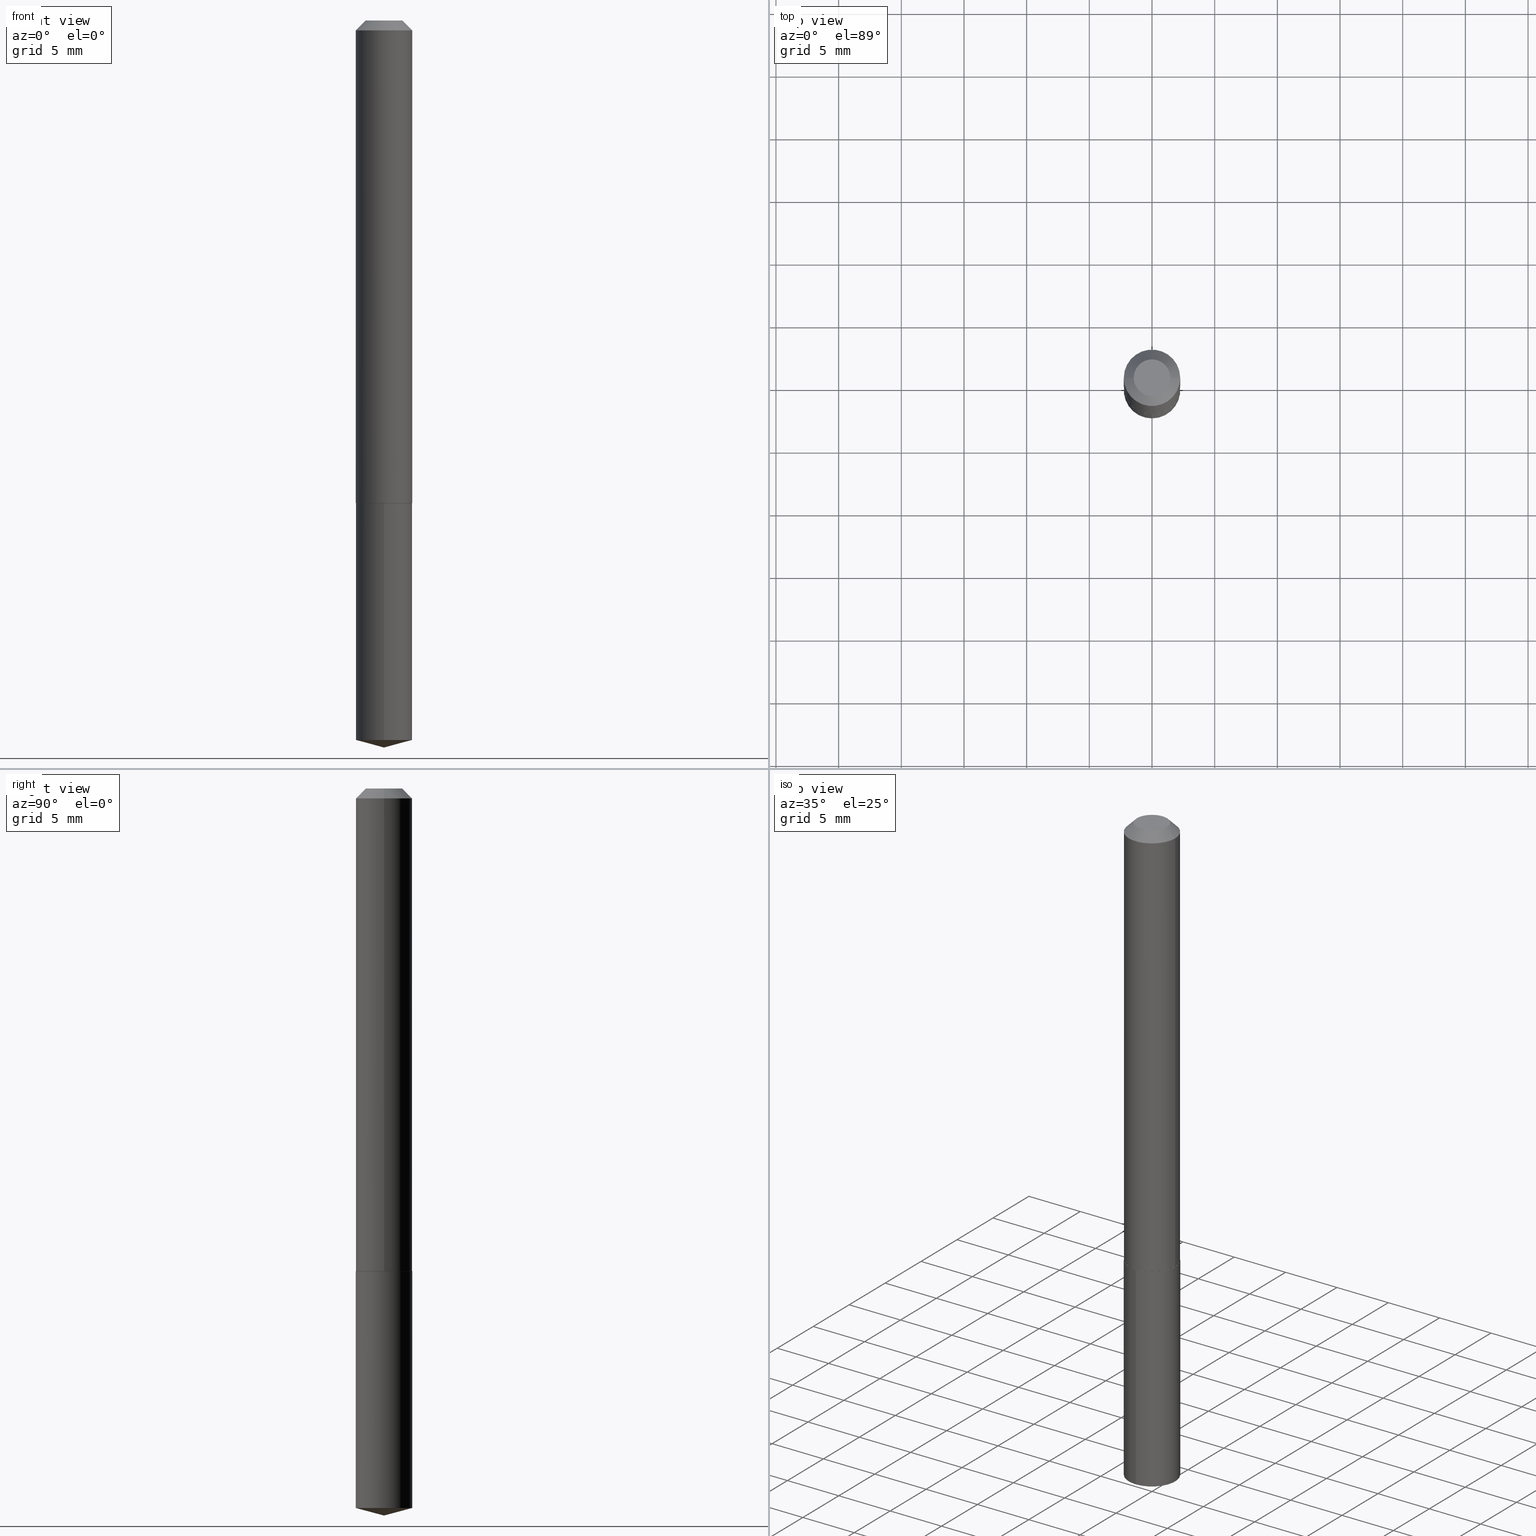
[diagram: canonical four-view strip — front | top / right | iso, engineering-drawing reading convention]
A machine part, canonical four-view strip (front | top / right | iso — engineering-drawing reading convention). The complete STEP part file that produces these views, byte-faithful:
ISO-10303-21;
HEADER;
FILE_DESCRIPTION (( 'STEP AP203' ),
    '1' );
FILE_NAME ('68980.STEP',
    '2024-04-23T14:02:09',
    ( '' ),
    ( '' ),
    'SwSTEP 2.0',
    'SolidWorks 2023',
    '' );
FILE_SCHEMA (( 'CONFIG_CONTROL_DESIGN' ));
ENDSEC;

DATA;
#1 = DIRECTION ( 'NONE',  ( 1.000000000000000000, -6.982962677686267499E-15, 4.876176775795935793E-29 ) ) ;
#2 = EDGE_CURVE ( 'NONE', #19, #376, #138, .T. ) ;
#3 = CARTESIAN_POINT ( 'NONE',  ( 0.08859999999999999820, -7.169489144414067475E-16, -0.03125000000000020817 ) ) ;
#4 = LINE ( 'NONE', #361, #304 ) ;
#5 = MECHANICAL_CONTEXT ( 'NONE', #122, 'mechanical' ) ;
#6 = VECTOR ( 'NONE', #324, 39.37007874015748143 ) ;
#7 =( LENGTH_UNIT ( ) NAMED_UNIT ( * ) SI_UNIT ( $, .METRE. ) );
#8 = APPLICATION_CONTEXT ( 'configuration controlled 3d designs of mechanical parts and assemblies' ) ;
#9 =( NAMED_UNIT ( * ) SI_UNIT ( $, .STERADIAN. ) SOLID_ANGLE_UNIT ( ) );
#10 = PERSON_AND_ORGANIZATION ( #248, #373 ) ;
#11 = CLOSED_SHELL ( 'NONE', ( #99, #189, #73, #169, #341, #325, #384, #48 ) ) ;
#12 = EDGE_CURVE ( 'NONE', #376, #255, #97, .T. ) ;
#13 = ORIENTED_EDGE ( 'NONE', *, *, #219, .F. ) ;
#14 = EDGE_LOOP ( 'NONE', ( #190, #54, #104, #321 ) ) ;
#15 = DATE_AND_TIME ( #236, #45 ) ;
#16 = CARTESIAN_POINT ( 'NONE',  ( 3.706841616415430808E-29, -5.292387413418440845E-15, -1.515800000000000258 ) ) ;
#17 = DIRECTION ( 'NONE',  ( -6.982962677686265133E-15, -1.000000000000000000, 3.083349879982238325E-15 ) ) ;
#18 = VECTOR ( 'NONE', #241, 39.37007874015748143 ) ;
#19 = VERTEX_POINT ( 'NONE', #49 ) ;
#20 = CARTESIAN_POINT ( 'NONE',  ( 5.526122166285560091E-29, -7.889979991911582410E-15, -2.259759701550603239 ) ) ;
#21 = CC_DESIGN_PERSON_AND_ORGANIZATION_ASSIGNMENT ( #157, #366, ( #244 ) ) ;
#22 = ORIENTED_EDGE ( 'NONE', *, *, #269, .T. ) ;
#23 = DIRECTION ( 'NONE',  ( -6.982962677686265133E-15, -1.000000000000000000, 3.083349879982238325E-15 ) ) ;
#24 = CARTESIAN_POINT ( 'NONE',  ( 0.08860000000000017861, -5.909332165992023872E-15, -1.515300000000000313 ) ) ;
#25 = CIRCLE ( 'NONE', #287, 0.08810000000000035858 ) ;
#26 = EDGE_CURVE ( 'NONE', #94, #110, #367, .T. ) ;
#27 = CARTESIAN_POINT ( 'NONE',  ( -5.989671091818665474E-48, 8.551662891793964028E-34, 2.449293598294711584E-19 ) ) ;
#28 = CARTESIAN_POINT ( 'NONE',  ( 3.705618882012338006E-29, -5.290641672749019341E-15, -1.515300000000000313 ) ) ;
#29 = ORIENTED_EDGE ( 'NONE', *, *, #31, .F. ) ;
#30 = DIRECTION ( 'NONE',  ( -2.445468806185136597E-29, 3.491481338843145583E-15, 1.000000000000000000 ) ) ;
#31 = EDGE_CURVE ( 'NONE', #166, #86, #251, .T. ) ;
#32 = VECTOR ( 'NONE', #167, 39.37007874015748854 ) ;
#33 = DIRECTION ( 'NONE',  ( -2.445402010456052703E-29, 3.491576994128970532E-15, 1.000000000000000000 ) ) ;
#34 = CARTESIAN_POINT ( 'NONE',  ( 7.642090019328602662E-31, -1.091087918388490267E-16, -0.03125000000000020817 ) ) ;
#35 = DIRECTION ( 'NONE',  ( -6.982962677686265133E-15, -1.000000000000000000, 3.083349879982238325E-15 ) ) ;
#36 = APPROVAL ( #220, 'UNSPECIFIED' ) ;
#37 = VECTOR ( 'NONE', #364, 39.37007874015748143 ) ;
#38 = ORIENTED_EDGE ( 'NONE', *, *, #245, .F. ) ;
#39 = APPROVAL_PERSON_ORGANIZATION ( #253, #343, #133 ) ;
#40 = PRODUCT_DEFINITION_SHAPE ( 'NONE', 'NONE',  #173 ) ;
#41 = APPROVAL_ROLE ( '' ) ;
#42 =( NAMED_UNIT ( * ) PLANE_ANGLE_UNIT ( ) SI_UNIT ( $, .RADIAN. ) );
#43 = VECTOR ( 'NONE', #109, 39.37007874015748143 ) ;
#44 = AXIS2_PLACEMENT_3D ( 'NONE', #207, #117, #164 ) ;
#45 = LOCAL_TIME ( 10, 2, 9.000000000000000000, #108 ) ;
#46 = CARTESIAN_POINT ( 'NONE',  ( 3.705618882012338006E-29, -5.290641672749019341E-15, -1.515300000000000313 ) ) ;
#47 = DESIGN_CONTEXT ( 'detailed design', #8, 'design' ) ;
#48 = ADVANCED_FACE ( 'NONE', ( #140 ), #145, .F. ) ;
#49 = CARTESIAN_POINT ( 'NONE',  ( 6.295408638835040708E-16, 0.08859999999999210174, -2.259759701550603683 ) ) ;
#50 = EDGE_LOOP ( 'NONE', ( #371, #263, #125, #38 ) ) ;
#51 = LINE ( 'NONE', #297, #32 ) ;
#52 = ORIENTED_EDGE ( 'NONE', *, *, #150, .T. ) ;
#53 = CARTESIAN_POINT ( 'NONE',  ( 3.706841616415430808E-29, -5.292387413418440845E-15, -1.515800000000000258 ) ) ;
#54 = ORIENTED_EDGE ( 'NONE', *, *, #2, .T. ) ;
#55 = FACE_OUTER_BOUND ( 'NONE', #14, .T. ) ;
#56 = CARTESIAN_POINT ( 'NONE',  ( 0.08859999999999999820, -7.277992850818522507E-16, -0.03125000000000020817 ) ) ;
#57 = CIRCLE ( 'NONE', #85, 0.08859999999999999820 ) ;
#58 = CARTESIAN_POINT ( 'NONE',  ( 0.000000000000000000, 0.000000000000000000, 0.000000000000000000 ) ) ;
#59 = EDGE_LOOP ( 'NONE', ( #13, #114 ) ) ;
#60 = FACE_OUTER_BOUND ( 'NONE', #139, .T. ) ;
#61 = EDGE_CURVE ( 'NONE', #110, #166, #201, .T. ) ;
#62 = DIRECTION ( 'NONE',  ( -2.445402010456052703E-29, 3.491576994128970532E-15, 1.000000000000000000 ) ) ;
#63 = DIRECTION ( 'NONE',  ( 1.000000000000000000, -6.982962677686265922E-15, 0.000000000000000000 ) ) ;
#64 = VECTOR ( 'NONE', #120, 39.37007874015748143 ) ;
#65 = DIRECTION ( 'NONE',  ( -6.982962677686266711E-15, -1.000000000000000000, 3.510303681827543403E-15 ) ) ;
#66 = CALENDAR_DATE ( 2024, 23, 4 ) ;
#67 = DIMENSIONAL_EXPONENTS ( 1.000000000000000000, 0.000000000000000000, 0.000000000000000000, 0.000000000000000000, 0.000000000000000000, 0.000000000000000000, 0.000000000000000000 ) ;
#68 = DIRECTION ( 'NONE',  ( 1.000000000000000000, 0.000000000000000000, 0.000000000000000000 ) ) ;
#69 = PERSON_AND_ORGANIZATION ( #248, #373 ) ;
#70 = CIRCLE ( 'NONE', #338, 0.05734999999999999820 ) ;
#71 = LOCAL_TIME ( 10, 2, 9.000000000000000000, #222 ) ;
#72 = DATE_AND_TIME ( #66, #318 ) ;
#73 = ADVANCED_FACE ( 'NONE', ( #83 ), #380, .T. ) ;
#74 = ORIENTED_EDGE ( 'NONE', *, *, #200, .T. ) ;
#75 = EDGE_LOOP ( 'NONE', ( #374, #74, #261, #235 ) ) ;
#76 = APPROVAL_STATUS ( 'not_yet_approved' ) ;
#77 = CARTESIAN_POINT ( 'NONE',  ( -2.994835545909332737E-48, 4.275831445896982014E-34, 1.224646799147355792E-19 ) ) ;
#78 = AXIS2_PLACEMENT_3D ( 'NONE', #77, #115, #84 ) ;
#79 = AXIS2_PLACEMENT_3D ( 'NONE', #335, #129, #247 ) ;
#80 = VERTEX_POINT ( 'NONE', #234 ) ;
#81 = CARTESIAN_POINT ( 'NONE',  ( 0.000000000000000000, 0.000000000000000000, 0.000000000000000000 ) ) ;
#82 = ORIENTED_EDGE ( 'NONE', *, *, #183, .T. ) ;
#83 = FACE_OUTER_BOUND ( 'NONE', #285, .T. ) ;
#84 = DIRECTION ( 'NONE',  ( -1.000000000000000000, 6.982962677686265922E-15, -4.876176775795935793E-29 ) ) ;
#85 = AXIS2_PLACEMENT_3D ( 'NONE', #215, #336, #305 ) ;
#86 = VERTEX_POINT ( 'NONE', #194 ) ;
#87 = DIRECTION ( 'NONE',  ( 2.445468806185136597E-29, -3.491481338843145583E-15, -1.000000000000000000 ) ) ;
#88 = PLANE ( 'NONE',  #154 ) ;
#89 = DIRECTION ( 'NONE',  ( 6.982962677686265922E-15, 1.000000000000000000, -3.491576994128970532E-15 ) ) ;
#90 = CONICAL_SURFACE ( 'NONE', #317, 0.08860000000000017861, 0.7853981633973801113 ) ;
#91 = EDGE_CURVE ( 'NONE', #239, #307, #348, .T. ) ;
#92 = DIRECTION ( 'NONE',  ( -2.445468806185136597E-29, 3.491481338843145583E-15, 1.000000000000000000 ) ) ;
#93 = MANIFOLD_SOLID_BREP ( 'Body-Move/Copy2[2]', #11 ) ;
#94 = VERTEX_POINT ( 'NONE', #165 ) ;
#95 = CARTESIAN_POINT ( 'NONE',  ( -9.069149296315166997E-28, 1.294907901143686837E-13, 37.08657874015747780 ) ) ;
#96 = CARTESIAN_POINT ( 'NONE',  ( -9.069149296315166997E-28, 1.294907901143686837E-13, 37.08657874015747780 ) ) ;
#97 = CIRCLE ( 'NONE', #315, 0.08859999999999999820 ) ;
#98 = APPLICATION_PROTOCOL_DEFINITION ( 'international standard', 'config_control_design', 1994, #8 ) ;
#99 = ADVANCED_FACE ( 'NONE', ( #322 ), #238, .T. ) ;
#100 = FACE_OUTER_BOUND ( 'NONE', #232, .T. ) ;
#101 = EDGE_CURVE ( 'NONE', #289, #80, #51, .T. ) ;
#102 = COORDINATED_UNIVERSAL_TIME_OFFSET ( 5, 0, .BEHIND. ) ;
#103 = AXIS2_PLACEMENT_3D ( 'NONE', #135, #368, #68 ) ;
#104 = ORIENTED_EDGE ( 'NONE', *, *, #134, .F. ) ;
#105 = CARTESIAN_POINT ( 'NONE',  ( 7.642090019328602662E-31, -1.091087918388490267E-16, -0.03125000000000020817 ) ) ;
#106 = CC_DESIGN_PERSON_AND_ORGANIZATION_ASSIGNMENT ( #10, #137, ( #205 ) ) ;
#107 = EDGE_LOOP ( 'NONE', ( #346, #377, #152 ) ) ;
#108 = COORDINATED_UNIVERSAL_TIME_OFFSET ( 5, 0, .BEHIND. ) ;
#109 = DIRECTION ( 'NONE',  ( -2.445402010456052423E-29, 3.491576994128970532E-15, 1.000000000000000000 ) ) ;
#110 = VERTEX_POINT ( 'NONE', #355 ) ;
#111 = SHAPE_DEFINITION_REPRESENTATION ( #40, #171 ) ;
#112 = DIRECTION ( 'NONE',  ( -0.7071067811865451302, 2.468850131082231817E-15, -0.7071067811865499042 ) ) ;
#113 =( GEOMETRIC_REPRESENTATION_CONTEXT ( 3 ) GLOBAL_UNCERTAINTY_ASSIGNED_CONTEXT ( ( #282 ) ) GLOBAL_UNIT_ASSIGNED_CONTEXT ( ( #375, #42, #9 ) ) REPRESENTATION_CONTEXT ( 'NONE', 'WORKASPACE' ) );
#114 = ORIENTED_EDGE ( 'NONE', *, *, #26, .F. ) ;
#115 = DIRECTION ( 'NONE',  ( 2.438088387897960049E-29, -3.491481338843145188E-15, -1.000000000000000000 ) ) ;
#116 = ORIENTED_EDGE ( 'NONE', *, *, #210, .T. ) ;
#117 = DIRECTION ( 'NONE',  ( -2.445468806185136597E-29, 3.491481338843145583E-15, 1.000000000000000000 ) ) ;
#118 = EDGE_LOOP ( 'NONE', ( #227, #198, #116, #314 ) ) ;
#119 = FACE_OUTER_BOUND ( 'NONE', #59, .T. ) ;
#120 = DIRECTION ( 'NONE',  ( -2.445468806185136877E-29, 3.491481338843145188E-15, 1.000000000000000000 ) ) ;
#121 = CC_DESIGN_DATE_AND_TIME_ASSIGNMENT ( #259, #199, ( #205 ) ) ;
#122 = APPLICATION_CONTEXT ( 'configuration controlled 3d designs of mechanical parts and assemblies' ) ;
#123 = FACE_OUTER_BOUND ( 'NONE', #221, .T. ) ;
#124 = EDGE_CURVE ( 'NONE', #289, #19, #204, .T. ) ;
#125 = ORIENTED_EDGE ( 'NONE', *, *, #61, .T. ) ;
#126 = CARTESIAN_POINT ( 'NONE',  ( 3.705618882012338006E-29, -5.290641672749019341E-15, -1.515300000000000313 ) ) ;
#127 = ORIENTED_EDGE ( 'NONE', *, *, #284, .F. ) ;
#128 = CIRCLE ( 'NONE', #212, 0.08859999999999999820 ) ;
#129 = DIRECTION ( 'NONE',  ( -2.445402010456052703E-29, 3.491576994128970532E-15, 1.000000000000000000 ) ) ;
#130 = CYLINDRICAL_SURFACE ( 'NONE', #79, 0.08859999999999999820 ) ;
#131 = EDGE_CURVE ( 'NONE', #19, #80, #128, .T. ) ;
#132 = AXIS2_PLACEMENT_3D ( 'NONE', #58, #178, #1 ) ;
#133 = APPROVAL_ROLE ( '' ) ;
#134 = EDGE_CURVE ( 'NONE', #255, #376, #148, .T. ) ;
#135 = CARTESIAN_POINT ( 'NONE',  ( 0.000000000000000000, 0.000000000000000000, 0.000000000000000000 ) ) ;
#136 = ORIENTED_EDGE ( 'NONE', *, *, #124, .T. ) ;
#137 = PERSON_AND_ORGANIZATION_ROLE ( 'classification_officer' ) ;
#138 = LINE ( 'NONE', #260, #43 ) ;
#139 = EDGE_LOOP ( 'NONE', ( #258, #136, #350 ) ) ;
#140 = FACE_OUTER_BOUND ( 'NONE', #225, .T. ) ;
#141 = ORIENTED_EDGE ( 'NONE', *, *, #91, .T. ) ;
#142 = CARTESIAN_POINT ( 'NONE',  ( 0.08860000000000008147, -6.186904932430038403E-16, 4.320292623355202969E-30 ) ) ;
#143 = APPROVAL_PERSON_ORGANIZATION ( #206, #217, #191 ) ;
#144 = ORIENTED_EDGE ( 'NONE', *, *, #61, .F. ) ;
#145 = PLANE ( 'NONE',  #78 ) ;
#146 = DIRECTION ( 'NONE',  ( -2.445402010456052703E-29, 3.491576994128970532E-15, 1.000000000000000000 ) ) ;
#147 = DIRECTION ( 'NONE',  ( -2.438088387897960049E-29, 3.491481338843145188E-15, 1.000000000000000000 ) ) ;
#148 = CIRCLE ( 'NONE', #358, 0.08859999999999999820 ) ;
#149 = DIRECTION ( 'NONE',  ( -2.445402010456052703E-29, 3.491576994128970532E-15, 1.000000000000000000 ) ) ;
#150 = EDGE_CURVE ( 'NONE', #166, #344, #292, .T. ) ;
#151 = CARTESIAN_POINT ( 'NONE',  ( -6.186904932429659750E-16, -0.08860000000000528564, -1.515800000000000036 ) ) ;
#152 = ORIENTED_EDGE ( 'NONE', *, *, #131, .F. ) ;
#153 = LINE ( 'NONE', #246, #18 ) ;
#154 = AXIS2_PLACEMENT_3D ( 'NONE', #301, #302, #89 ) ;
#155 = DIRECTION ( 'NONE',  ( -6.982962677686266711E-15, -1.000000000000000000, 3.510303681827543403E-15 ) ) ;
#156 = FACE_OUTER_BOUND ( 'NONE', #107, .T. ) ;
#157 = PERSON_AND_ORGANIZATION ( #248, #373 ) ;
#158 = VERTEX_POINT ( 'NONE', #265 ) ;
#159 = PERSON_AND_ORGANIZATION_ROLE ( 'design_owner' ) ;
#160 = ORIENTED_EDGE ( 'NONE', *, *, #290, .T. ) ;
#161 = CALENDAR_DATE ( 2024, 23, 4 ) ;
#162 = CONICAL_SURFACE ( 'NONE', #387, 146.9311341562590769, 1.308996938995754089 ) ;
#163 = ADVANCED_FACE ( 'NONE', ( #55 ), #295, .T. ) ;
#164 = DIRECTION ( 'NONE',  ( 1.000000000000000000, -6.982962677686266711E-15, 4.876171578127929944E-29 ) ) ;
#165 = CARTESIAN_POINT ( 'NONE',  ( -0.08810000000000035858, -4.663750036039679325E-15, -1.515800000000000258 ) ) ;
#166 = VERTEX_POINT ( 'NONE', #268 ) ;
#167 = DIRECTION ( 'NONE',  ( -6.745023994389849388E-15, -0.9659258262890690894, 0.2588190451025174088 ) ) ;
#168 = AXIS2_PLACEMENT_3D ( 'NONE', #170, #146, #23 ) ;
#169 = ADVANCED_FACE ( 'NONE', ( #119 ), #172, .F. ) ;
#170 = CARTESIAN_POINT ( 'NONE',  ( 3.706841616415430808E-29, -5.292387413418440845E-15, -1.515800000000000258 ) ) ;
#171 = ADVANCED_BREP_SHAPE_REPRESENTATION ( '68980', ( #333, #93, #103 ), #113 ) ;
#172 = PLANE ( 'NONE',  #256 ) ;
#173 = PRODUCT_DEFINITION ( 'UNKNOWN', '', #244, #47 ) ;
#174 = DIRECTION ( 'NONE',  ( -2.445468806185136597E-29, 3.491481338843145583E-15, 1.000000000000000000 ) ) ;
#175 = CIRCLE ( 'NONE', #230, 0.08859999999999999820 ) ;
#176 = ORIENTED_EDGE ( 'NONE', *, *, #12, .F. ) ;
#177 = CC_DESIGN_DATE_AND_TIME_ASSIGNMENT ( #188, #249, ( #173 ) ) ;
#178 = DIRECTION ( 'NONE',  ( -2.445468806185136597E-29, 3.491481338843145583E-15, 1.000000000000000000 ) ) ;
#179 = DIRECTION ( 'NONE',  ( -2.445468806185136597E-29, 3.491481338843145583E-15, 1.000000000000000000 ) ) ;
#180 = DIRECTION ( 'NONE',  ( -2.445402010456052703E-29, 3.491576994128970532E-15, 1.000000000000000000 ) ) ;
#181 = AXIS2_PLACEMENT_3D ( 'NONE', #386, #296, #319 ) ;
#182 = CARTESIAN_POINT ( 'NONE',  ( -0.08860000000000017861, -4.661100808865568913E-15, -1.515300000000000313 ) ) ;
#183 = EDGE_CURVE ( 'NONE', #239, #158, #270, .T. ) ;
#184 = ORIENTED_EDGE ( 'NONE', *, *, #200, .F. ) ;
#185 = AXIS2_PLACEMENT_3D ( 'NONE', #347, #87, #320 ) ;
#186 = PERSON_AND_ORGANIZATION ( #248, #373 ) ;
#187 = EDGE_LOOP ( 'NONE', ( #283, #316, #160, #176 ) ) ;
#188 = DATE_AND_TIME ( #340, #71 ) ;
#189 = ADVANCED_FACE ( 'NONE', ( #231 ), #352, .T. ) ;
#190 = ORIENTED_EDGE ( 'NONE', *, *, #378, .T. ) ;
#191 = APPROVAL_ROLE ( '' ) ;
#192 = AXIS2_PLACEMENT_3D ( 'NONE', #16, #267, #359 ) ;
#193 = AXIS2_PLACEMENT_3D ( 'NONE', #95, #33, #155 ) ;
#194 = CARTESIAN_POINT ( 'NONE',  ( -0.08860000000000017861, -4.661100808865568913E-15, -1.515300000000000313 ) ) ;
#195 = ORIENTED_EDGE ( 'NONE', *, *, #91, .F. ) ;
#196 = PRODUCT ( '68980', '68980', '', ( #5 ) ) ;
#197 = DIRECTION ( 'NONE',  ( -2.445402010456052703E-29, 3.491576994128970532E-15, 1.000000000000000000 ) ) ;
#198 = ORIENTED_EDGE ( 'NONE', *, *, #284, .T. ) ;
#199 = DATE_TIME_ROLE ( 'classification_date' ) ;
#200 = EDGE_CURVE ( 'NONE', #86, #158, #153, .T. ) ;
#201 = LINE ( 'NONE', #24, #298 ) ;
#202 = ORIENTED_EDGE ( 'NONE', *, *, #269, .F. ) ;
#203 = APPROVAL_DATE_TIME ( #15, #217 ) ;
#204 = LINE ( 'NONE', #233, #6 ) ;
#205 = SECURITY_CLASSIFICATION ( '', '', #309 ) ;
#206 = PERSON_AND_ORGANIZATION ( #248, #373 ) ;
#207 = CARTESIAN_POINT ( 'NONE',  ( -5.989671091818665474E-48, 8.551662891793964028E-34, 2.449293598294711584E-19 ) ) ;
#208 = EDGE_LOOP ( 'NONE', ( #184, #345, #52, #202 ) ) ;
#209 = LINE ( 'NONE', #3, #37 ) ;
#210 = EDGE_CURVE ( 'NONE', #344, #158, #57, .T. ) ;
#211 = CARTESIAN_POINT ( 'NONE',  ( -0.05734999999999999820, 4.550273054847307810E-16, 2.449293598264799484E-19 ) ) ;
#212 = AXIS2_PLACEMENT_3D ( 'NONE', #20, #197, #326 ) ;
#213 = CC_DESIGN_APPROVAL ( #217, ( #205 ) ) ;
#214 = FACE_OUTER_BOUND ( 'NONE', #187, .T. ) ;
#215 = CARTESIAN_POINT ( 'NONE',  ( 7.642090019328602662E-31, -1.091087918388490267E-16, -0.03125000000000020817 ) ) ;
#216 = DIRECTION ( 'NONE',  ( 1.000000000000000000, -6.982962677686265922E-15, 0.000000000000000000 ) ) ;
#217 = APPROVAL ( #76, 'UNSPECIFIED' ) ;
#218 = COORDINATED_UNIVERSAL_TIME_OFFSET ( 5, 0, .BEHIND. ) ;
#219 = EDGE_CURVE ( 'NONE', #110, #94, #25, .T. ) ;
#220 = APPROVAL_STATUS ( 'not_yet_approved' ) ;
#221 = EDGE_LOOP ( 'NONE', ( #383, #381 ) ) ;
#222 = COORDINATED_UNIVERSAL_TIME_OFFSET ( 5, 0, .BEHIND. ) ;
#223 = CONICAL_SURFACE ( 'NONE', #294, 0.08859999999999999820, 0.7853981633974449483 ) ;
#224 = LOCAL_TIME ( 10, 2, 9.000000000000000000, #313 ) ;
#225 = EDGE_LOOP ( 'NONE', ( #141, #266 ) ) ;
#226 = DIRECTION ( 'NONE',  ( 2.445468806185136597E-29, -3.491481338843145583E-15, -1.000000000000000000 ) ) ;
#227 = ORIENTED_EDGE ( 'NONE', *, *, #310, .F. ) ;
#228 = CARTESIAN_POINT ( 'NONE',  ( 3.706841616415430808E-29, -5.292387413418440845E-15, -1.515800000000000258 ) ) ;
#229 = AXIS2_PLACEMENT_3D ( 'NONE', #34, #92, #389 ) ;
#230 = AXIS2_PLACEMENT_3D ( 'NONE', #299, #149, #35 ) ;
#231 = FACE_OUTER_BOUND ( 'NONE', #75, .T. ) ;
#232 = EDGE_LOOP ( 'NONE', ( #127, #195, #82, #22 ) ) ;
#233 = CARTESIAN_POINT ( 'NONE',  ( 5.584279764476524599E-29, -7.972726077528996948E-15, -2.283500000000000085 ) ) ;
#234 = CARTESIAN_POINT ( 'NONE',  ( -6.186904932429477326E-16, -0.08860000000000789466, -2.259759701550602795 ) ) ;
#235 = ORIENTED_EDGE ( 'NONE', *, *, #150, .F. ) ;
#236 = CALENDAR_DATE ( 2024, 23, 4 ) ;
#237 = DIRECTION ( 'NONE',  ( 0.7071067811864992780, -2.468850131081751401E-15, 0.7071067811865957564 ) ) ;
#238 = CONICAL_SURFACE ( 'NONE', #185, 0.08859999999999999820, 0.7853981633974449483 ) ;
#239 = VERTEX_POINT ( 'NONE', #211 ) ;
#240 = CARTESIAN_POINT ( 'NONE',  ( 6.295408638835040708E-16, 0.08859999999999469689, -1.515800000000000480 ) ) ;
#241 = DIRECTION ( 'NONE',  ( -2.445468806185136877E-29, 3.491481338843145188E-15, 1.000000000000000000 ) ) ;
#242 = DIRECTION ( 'NONE',  ( -2.445468806185136597E-29, 3.491481338843145583E-15, 1.000000000000000000 ) ) ;
#243 = CIRCLE ( 'NONE', #229, 0.08859999999999999820 ) ;
#244 = PRODUCT_DEFINITION_FORMATION_WITH_SPECIFIED_SOURCE ( 'ANY', '', #196, .NOT_KNOWN. ) ;
#245 = EDGE_CURVE ( 'NONE', #86, #166, #330, .T. ) ;
#246 = CARTESIAN_POINT ( 'NONE',  ( -0.08860000000000008147, 6.295408638834493435E-16, -4.358176489965850471E-30 ) ) ;
#247 = DIRECTION ( 'NONE',  ( -6.982962677686265133E-15, -1.000000000000000000, 3.083349879982238325E-15 ) ) ;
#248 = PERSON ( 'UNSPECIFIED', 'UNSPECIFIED', 'UNSPECIFIED', ('UNSPECIFIED'), ('UNSPECIFIED'), ('UNSPECIFIED') ) ;
#249 = DATE_TIME_ROLE ( 'creation_date' ) ;
#250 = CC_DESIGN_PERSON_AND_ORGANIZATION_ASSIGNMENT ( #186, #159, ( #196 ) ) ;
#251 = CIRCLE ( 'NONE', #329, 0.08860000000000017861 ) ;
#252 = VECTOR ( 'NONE', #112, 39.37007874015748143 ) ;
#253 = PERSON_AND_ORGANIZATION ( #248, #373 ) ;
#254 = PERSON_AND_ORGANIZATION ( #248, #373 ) ;
#255 = VERTEX_POINT ( 'NONE', #151 ) ;
#256 = AXIS2_PLACEMENT_3D ( 'NONE', #262, #147, #388 ) ;
#257 = CALENDAR_DATE ( 2024, 23, 4 ) ;
#258 = ORIENTED_EDGE ( 'NONE', *, *, #101, .F. ) ;
#259 = DATE_AND_TIME ( #257, #224 ) ;
#260 = CARTESIAN_POINT ( 'NONE',  ( 6.295408638834857298E-16, 0.08859999999999469689, -1.515800000000000480 ) ) ;
#261 = ORIENTED_EDGE ( 'NONE', *, *, #210, .F. ) ;
#262 = CARTESIAN_POINT ( 'NONE',  ( 3.706841616415430808E-29, -5.292387413418440845E-15, -1.515800000000000258 ) ) ;
#263 = ORIENTED_EDGE ( 'NONE', *, *, #26, .T. ) ;
#264 = CONICAL_SURFACE ( 'NONE', #193, 146.9311341562590769, 1.308996938995754089 ) ;
#265 = CARTESIAN_POINT ( 'NONE',  ( -0.08859999999999999820, -2.070334368410483793E-15, -0.03125000000000020817 ) ) ;
#266 = ORIENTED_EDGE ( 'NONE', *, *, #310, .T. ) ;
#267 = DIRECTION ( 'NONE',  ( -2.445468806185136597E-29, 3.491481338843145583E-15, 1.000000000000000000 ) ) ;
#268 = CARTESIAN_POINT ( 'NONE',  ( 0.08860000000000017861, -5.909332165992023872E-15, -1.515300000000000313 ) ) ;
#269 = EDGE_CURVE ( 'NONE', #158, #344, #243, .T. ) ;
#270 = LINE ( 'NONE', #379, #252 ) ;
#271 = DIRECTION ( 'NONE',  ( 1.000000000000000000, -6.982962677686268288E-15, 0.000000000000000000 ) ) ;
#272 = DIRECTION ( 'NONE',  ( 1.000000000000000000, -6.982962677686267499E-15, 4.876176775795935793E-29 ) ) ;
#273 = CARTESIAN_POINT ( 'NONE',  ( 5.584075490876396198E-29, -7.973016066093505036E-15, -2.283500000000000085 ) ) ;
#274 = LOCAL_TIME ( 10, 2, 9.000000000000000000, #218 ) ;
#275 = PRODUCT_RELATED_PRODUCT_CATEGORY ( 'detail', '', ( #196 ) ) ;
#276 = DIRECTION ( 'NONE',  ( -2.445468806185136597E-29, 3.491481338843145583E-15, 1.000000000000000000 ) ) ;
#277 = DIRECTION ( 'NONE',  ( -0.7071067811864992780, 7.493145998870180611E-15, 0.7071067811865957564 ) ) ;
#278 = APPLICATION_PROTOCOL_DEFINITION ( 'international standard', 'config_control_design', 1994, #122 ) ;
#279 = ADVANCED_FACE ( 'NONE', ( #123 ), #88, .F. ) ;
#280 = CC_DESIGN_APPROVAL ( #36, ( #173 ) ) ;
#281 = PERSON_AND_ORGANIZATION ( #248, #373 ) ;
#282 = UNCERTAINTY_MEASURE_WITH_UNIT (LENGTH_MEASURE( 1.000000000000000082E-05 ), #375, 'distance_accuracy_value', 'NONE');
#283 = ORIENTED_EDGE ( 'NONE', *, *, #2, .F. ) ;
#284 = EDGE_CURVE ( 'NONE', #307, #344, #209, .T. ) ;
#285 = EDGE_LOOP ( 'NONE', ( #356, #312, #29, #144 ) ) ;
#286 = PERSON_AND_ORGANIZATION_ROLE ( 'design_supplier' ) ;
#287 = AXIS2_PLACEMENT_3D ( 'NONE', #360, #242, #271 ) ;
#288 = APPROVAL_DATE_TIME ( #311, #36 ) ;
#289 = VERTEX_POINT ( 'NONE', #273 ) ;
#290 = EDGE_CURVE ( 'NONE', #80, #255, #4, .T. ) ;
#291 = DIRECTION ( 'NONE',  ( -6.982962677686265133E-15, -1.000000000000000000, 3.083349879982238325E-15 ) ) ;
#292 = LINE ( 'NONE', #142, #64 ) ;
#293 = CC_DESIGN_PERSON_AND_ORGANIZATION_ASSIGNMENT ( #254, #286, ( #244 ) ) ;
#294 = AXIS2_PLACEMENT_3D ( 'NONE', #105, #226, #342 ) ;
#295 = CYLINDRICAL_SURFACE ( 'NONE', #168, 0.08859999999999999820 ) ;
#296 = DIRECTION ( 'NONE',  ( -2.445468806185136597E-29, 3.491481338843145583E-15, 1.000000000000000000 ) ) ;
#297 = CARTESIAN_POINT ( 'NONE',  ( 5.584075490876396198E-29, -7.973016066093505036E-15, -2.283500000000000085 ) ) ;
#298 = VECTOR ( 'NONE', #237, 39.37007874015748143 ) ;
#299 = CARTESIAN_POINT ( 'NONE',  ( 5.526122166285560091E-29, -7.889979991911582410E-15, -2.259759701550603239 ) ) ;
#300 = APPROVAL_PERSON_ORGANIZATION ( #69, #36, #41 ) ;
#301 = CARTESIAN_POINT ( 'NONE',  ( 3.706841616415430808E-29, -5.292387413418440845E-15, -1.515800000000000258 ) ) ;
#302 = DIRECTION ( 'NONE',  ( 2.445402010456052423E-29, -3.491576994128970532E-15, -1.000000000000000000 ) ) ;
#303 = FACE_OUTER_BOUND ( 'NONE', #50, .T. ) ;
#304 = VECTOR ( 'NONE', #390, 39.37007874015748143 ) ;
#305 = DIRECTION ( 'NONE',  ( 1.000000000000000000, -6.982962677686266711E-15, 0.000000000000000000 ) ) ;
#306 = APPROVAL_STATUS ( 'not_yet_approved' ) ;
#307 = VERTEX_POINT ( 'NONE', #331 ) ;
#308 = AXIS2_PLACEMENT_3D ( 'NONE', #126, #30, #216 ) ;
#309 = SECURITY_CLASSIFICATION_LEVEL ( 'unclassified' ) ;
#310 = EDGE_CURVE ( 'NONE', #307, #239, #70, .T. ) ;
#311 = DATE_AND_TIME ( #161, #274 ) ;
#312 = ORIENTED_EDGE ( 'NONE', *, *, #369, .T. ) ;
#313 = COORDINATED_UNIVERSAL_TIME_OFFSET ( 5, 0, .BEHIND. ) ;
#314 = ORIENTED_EDGE ( 'NONE', *, *, #183, .F. ) ;
#315 = AXIS2_PLACEMENT_3D ( 'NONE', #228, #62, #17 ) ;
#316 = ORIENTED_EDGE ( 'NONE', *, *, #131, .T. ) ;
#317 = AXIS2_PLACEMENT_3D ( 'NONE', #28, #174, #63 ) ;
#318 = LOCAL_TIME ( 10, 2, 9.000000000000000000, #102 ) ;
#319 = DIRECTION ( 'NONE',  ( 1.000000000000000000, -6.982962677686265922E-15, 0.000000000000000000 ) ) ;
#320 = DIRECTION ( 'NONE',  ( -1.000000000000000000, 6.982962677686266711E-15, 0.000000000000000000 ) ) ;
#321 = ORIENTED_EDGE ( 'NONE', *, *, #290, .F. ) ;
#322 = FACE_OUTER_BOUND ( 'NONE', #118, .T. ) ;
#323 = AXIS2_PLACEMENT_3D ( 'NONE', #81, #179, #272 ) ;
#324 = DIRECTION ( 'NONE',  ( 6.863315791527704515E-15, 0.9659258262890708657, 0.2588190451025106920 ) ) ;
#325 = ADVANCED_FACE ( 'NONE', ( #337 ), #327, .T. ) ;
#326 = DIRECTION ( 'NONE',  ( -6.982962677686265133E-15, -1.000000000000000000, 3.083349879982238325E-15 ) ) ;
#327 = CYLINDRICAL_SURFACE ( 'NONE', #132, 0.08860000000000008147 ) ;
#328 = ADVANCED_FACE ( 'NONE', ( #60 ), #162, .T. ) ;
#329 = AXIS2_PLACEMENT_3D ( 'NONE', #46, #382, #385 ) ;
#330 = CIRCLE ( 'NONE', #308, 0.08860000000000017861 ) ;
#331 = CARTESIAN_POINT ( 'NONE',  ( 0.05734999999999999820, -5.551992373068019179E-16, 2.449293598328120690E-19 ) ) ;
#332 = CC_DESIGN_APPROVAL ( #343, ( #244 ) ) ;
#333 = MANIFOLD_SOLID_BREP ( 'Body-Move/Copy2[1]', #357 ) ;
#334 = CC_DESIGN_PERSON_AND_ORGANIZATION_ASSIGNMENT ( #281, #372, ( #173 ) ) ;
#335 = CARTESIAN_POINT ( 'NONE',  ( 3.706841616415430808E-29, -5.292387413418440845E-15, -1.515800000000000258 ) ) ;
#336 = DIRECTION ( 'NONE',  ( -2.445468806185136597E-29, 3.491481338843145583E-15, 1.000000000000000000 ) ) ;
#337 = FACE_OUTER_BOUND ( 'NONE', #208, .T. ) ;
#338 = AXIS2_PLACEMENT_3D ( 'NONE', #27, #276, #362 ) ;
#339 = APPROVAL_DATE_TIME ( #72, #343 ) ;
#340 = CALENDAR_DATE ( 2024, 23, 4 ) ;
#341 = ADVANCED_FACE ( 'NONE', ( #303 ), #90, .T. ) ;
#342 = DIRECTION ( 'NONE',  ( -1.000000000000000000, 6.982962677686266711E-15, 0.000000000000000000 ) ) ;
#343 = APPROVAL ( #306, 'UNSPECIFIED' ) ;
#344 = VERTEX_POINT ( 'NONE', #56 ) ;
#345 = ORIENTED_EDGE ( 'NONE', *, *, #245, .T. ) ;
#346 = ORIENTED_EDGE ( 'NONE', *, *, #124, .F. ) ;
#347 = CARTESIAN_POINT ( 'NONE',  ( 7.642090019328602662E-31, -1.091087918388490267E-16, -0.03125000000000020817 ) ) ;
#348 = CIRCLE ( 'NONE', #44, 0.05734999999999999820 ) ;
#349 = ADVANCED_FACE ( 'NONE', ( #214 ), #130, .T. ) ;
#350 = ORIENTED_EDGE ( 'NONE', *, *, #378, .F. ) ;
#351 = VECTOR ( 'NONE', #277, 39.37007874015748143 ) ;
#352 = CYLINDRICAL_SURFACE ( 'NONE', #323, 0.08860000000000008147 ) ;
#353 = DIRECTION ( 'NONE',  ( -2.445402010456052703E-29, 3.491576994128970532E-15, 1.000000000000000000 ) ) ;
#354 = ADVANCED_FACE ( 'NONE', ( #156 ), #264, .T. ) ;
#355 = CARTESIAN_POINT ( 'NONE',  ( 0.08810000000000035858, -5.907586425322603946E-15, -1.515800000000000258 ) ) ;
#356 = ORIENTED_EDGE ( 'NONE', *, *, #219, .T. ) ;
#357 = CLOSED_SHELL ( 'NONE', ( #163, #328, #354, #349, #279 ) ) ;
#358 = AXIS2_PLACEMENT_3D ( 'NONE', #53, #353, #291 ) ;
#359 = DIRECTION ( 'NONE',  ( 1.000000000000000000, -6.982962677686268288E-15, 0.000000000000000000 ) ) ;
#360 = CARTESIAN_POINT ( 'NONE',  ( 3.706841616415430808E-29, -5.292387413418440845E-15, -1.515800000000000258 ) ) ;
#361 = CARTESIAN_POINT ( 'NONE',  ( -6.186904932429659750E-16, -0.08860000000000528564, -1.515800000000000036 ) ) ;
#362 = DIRECTION ( 'NONE',  ( 1.000000000000000000, -6.982962677686266711E-15, 4.876171578127929944E-29 ) ) ;
#363 = CC_DESIGN_SECURITY_CLASSIFICATION ( #205, ( #244 ) ) ;
#364 = DIRECTION ( 'NONE',  ( 0.7071067811865451302, -7.319954787623248157E-15, -0.7071067811865499042 ) ) ;
#365 = LINE ( 'NONE', #182, #351 ) ;
#366 = PERSON_AND_ORGANIZATION_ROLE ( 'creator' ) ;
#367 = CIRCLE ( 'NONE', #192, 0.08810000000000035858 ) ;
#368 = DIRECTION ( 'NONE',  ( 0.000000000000000000, 0.000000000000000000, 1.000000000000000000 ) ) ;
#369 = EDGE_CURVE ( 'NONE', #94, #86, #365, .T. ) ;
#370 = LENGTH_MEASURE_WITH_UNIT ( LENGTH_MEASURE( 0.02539999999999999897 ), #7 );
#371 = ORIENTED_EDGE ( 'NONE', *, *, #369, .F. ) ;
#372 = PERSON_AND_ORGANIZATION_ROLE ( 'creator' ) ;
#373 = ORGANIZATION ( 'UNSPECIFIED', 'UNSPECIFIED', '' ) ;
#374 = ORIENTED_EDGE ( 'NONE', *, *, #31, .T. ) ;
#375 =( CONVERSION_BASED_UNIT ( 'INCH', #370 ) LENGTH_UNIT ( ) NAMED_UNIT ( #67 ) );
#376 = VERTEX_POINT ( 'NONE', #240 ) ;
#377 = ORIENTED_EDGE ( 'NONE', *, *, #101, .T. ) ;
#378 = EDGE_CURVE ( 'NONE', #80, #19, #175, .T. ) ;
#379 = CARTESIAN_POINT ( 'NONE',  ( -0.08859999999999999820, 5.095817014041542467E-16, -0.03125000000000020817 ) ) ;
#380 = CONICAL_SURFACE ( 'NONE', #181, 0.08860000000000017861, 0.7853981633973801113 ) ;
#381 = ORIENTED_EDGE ( 'NONE', *, *, #12, .T. ) ;
#382 = DIRECTION ( 'NONE',  ( -2.445468806185136597E-29, 3.491481338843145583E-15, 1.000000000000000000 ) ) ;
#383 = ORIENTED_EDGE ( 'NONE', *, *, #134, .T. ) ;
#384 = ADVANCED_FACE ( 'NONE', ( #100 ), #223, .T. ) ;
#385 = DIRECTION ( 'NONE',  ( 1.000000000000000000, -6.982962677686265922E-15, 0.000000000000000000 ) ) ;
#386 = CARTESIAN_POINT ( 'NONE',  ( 3.705618882012338006E-29, -5.290641672749019341E-15, -1.515300000000000313 ) ) ;
#387 = AXIS2_PLACEMENT_3D ( 'NONE', #96, #180, #65 ) ;
#388 = DIRECTION ( 'NONE',  ( 1.000000000000000000, -6.982962677686265922E-15, 4.876176775795935793E-29 ) ) ;
#389 = DIRECTION ( 'NONE',  ( 1.000000000000000000, -6.982962677686266711E-15, 0.000000000000000000 ) ) ;
#390 = DIRECTION ( 'NONE',  ( -2.445402010456052423E-29, 3.491576994128970532E-15, 1.000000000000000000 ) ) ;
ENDSEC;
END-ISO-10303-21;
